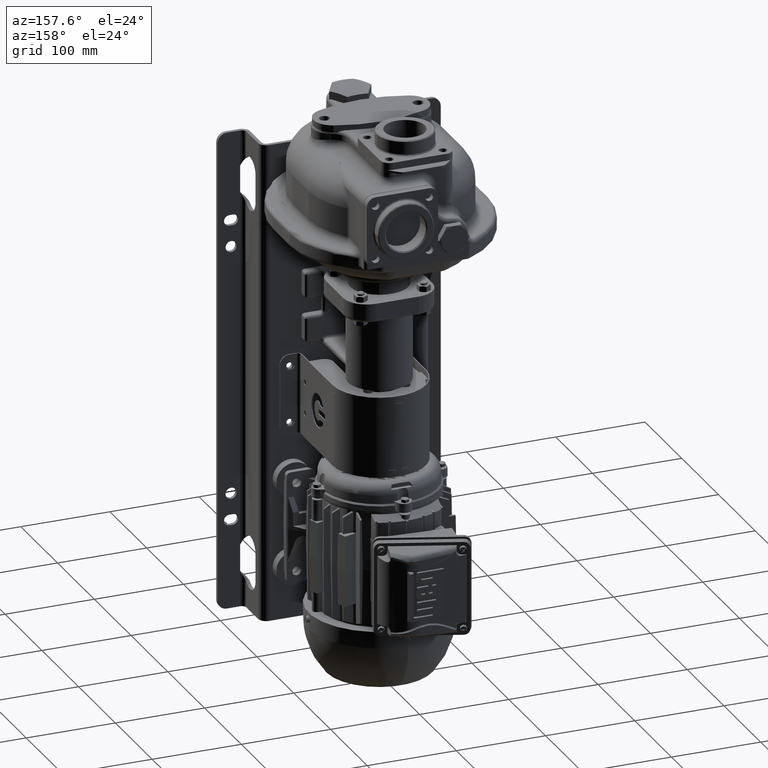
[diagram: clean part render]
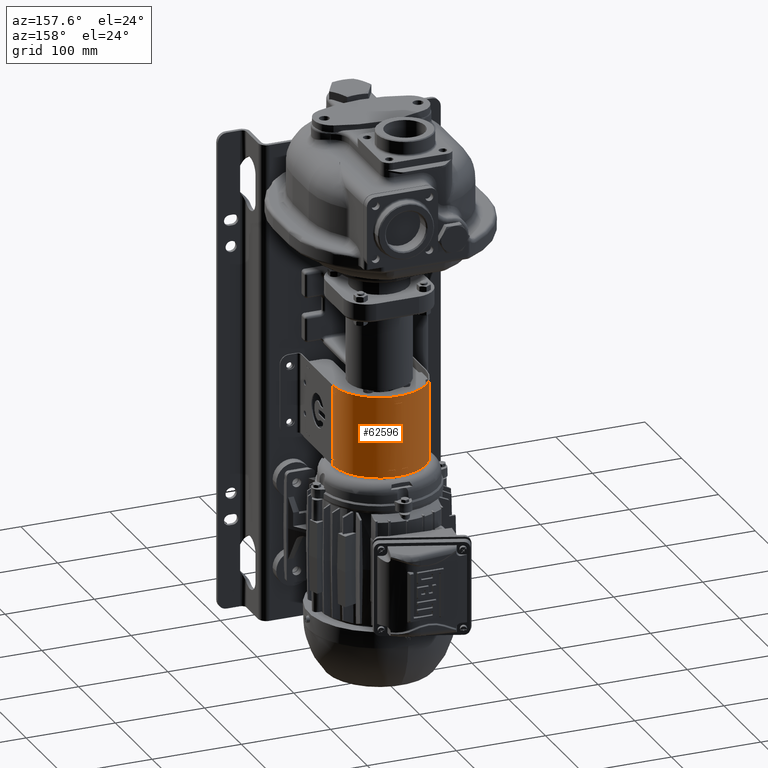
[diagram: same view with one face highlighted and labeled with its STEP entity id]
A machine part, auxiliary view. The second image highlights one B-rep face of the part: STEP entity #62596.
In plain terms, the highlighted cylindrical surface (partial cylindrical patch) has radius 52.5 mm, axis along (0, 0, -1).
Its self-contained STEP definition (entity closure, byte-faithful):
#2335=DIRECTION('',(0.E0,0.E0,-1.E0));
#2336=VECTOR('',#2335,7.E0);
#2337=CARTESIAN_POINT('',(5.25E1,9.E1,-7.9E1));
#2338=LINE('',#2337,#2336);
#2351=DIRECTION('',(0.E0,0.E0,-1.E0));
#2352=VECTOR('',#2351,7.46E1);
#2353=CARTESIAN_POINT('',(5.25E1,9.E1,-8.72E1));
#2354=LINE('',#2353,#2352);
#2367=DIRECTION('',(0.E0,0.E0,-1.E0));
#2368=VECTOR('',#2367,7.E0);
#2369=CARTESIAN_POINT('',(5.25E1,9.E1,-1.63E2));
#2370=LINE('',#2369,#2368);
#2843=CARTESIAN_POINT('',(0.E0,9.E1,-1.62E2));
#2844=DIRECTION('',(0.E0,0.E0,-1.E0));
#2845=DIRECTION('',(-9.999537711208E-1,9.615384615385E-3,0.E0));
#2846=AXIS2_PLACEMENT_3D('',#2843,#2844,#2845);
#2895=CARTESIAN_POINT('',(0.E0,9.E1,-1.62E2));
#2896=DIRECTION('',(0.E0,0.E0,-1.E0));
#2897=DIRECTION('',(-1.962441413671E-1,9.805550657557E-1,0.E0));
#2898=AXIS2_PLACEMENT_3D('',#2895,#2896,#2897);
#2928=CARTESIAN_POINT('',(0.E0,9.E1,-1.62E2));
#2929=DIRECTION('',(0.E0,0.E0,-1.E0));
#2930=DIRECTION('',(8.143187575608E-2,9.966789099860E-1,0.E0));
#2931=AXIS2_PLACEMENT_3D('',#2928,#2929,#2930);
#2980=CARTESIAN_POINT('',(0.E0,9.E1,-1.62E2));
#2981=DIRECTION('',(0.E0,0.E0,-1.E0));
#2982=DIRECTION('',(9.925126204237E-1,1.221421233633E-1,0.E0));
#2983=AXIS2_PLACEMENT_3D('',#2980,#2981,#2982);
#3886=CARTESIAN_POINT('',(-1.010302838907E-14,9.E1,-1.7E2));
#3887=DIRECTION('',(0.E0,0.E0,1.E0));
#3888=DIRECTION('',(1.E0,0.E0,0.E0));
#3889=AXIS2_PLACEMENT_3D('',#3886,#3887,#3888);
#4119=CARTESIAN_POINT('',(0.E0,9.E1,-1.63E2));
#4120=DIRECTION('',(0.E0,0.E0,1.E0));
#4121=DIRECTION('',(-9.897727806310E-1,1.426528749167E-1,0.E0));
#4122=AXIS2_PLACEMENT_3D('',#4119,#4120,#4121);
#4124=DIRECTION('',(2.131628207280E-14,0.E0,1.E0));
#4125=VECTOR('',#4124,1.E0);
#4126=CARTESIAN_POINT('',(-5.210691257224E1,9.641246147657E1,-1.63E2));
#4127=LINE('',#4126,#4125);
#4128=DIRECTION('',(0.E0,-1.421085471520E-14,1.E0));
#4129=VECTOR('',#4128,1.E0);
#4130=CARTESIAN_POINT('',(-5.249757298384E1,9.050480769231E1,-1.63E2));
#4131=LINE('',#4130,#4129);
#4132=CARTESIAN_POINT('',(0.E0,9.E1,-1.63E2));
#4133=DIRECTION('',(0.E0,0.E0,1.E0));
#4134=DIRECTION('',(-9.999537711208E-1,9.615384615385E-3,0.E0));
#4135=AXIS2_PLACEMENT_3D('',#4132,#4133,#4134);
#4137=DIRECTION('',(0.E0,0.E0,-1.E0));
#4138=VECTOR('',#4137,7.E0);
#4139=CARTESIAN_POINT('',(-5.25E1,9.E1,-1.63E2));
#4140=LINE('',#4139,#4138);
#4141=CARTESIAN_POINT('',(0.E0,9.E1,-1.63E2));
#4142=DIRECTION('',(0.E0,0.E0,1.E0));
#4143=DIRECTION('',(1.E0,0.E0,0.E0));
#4144=AXIS2_PLACEMENT_3D('',#4141,#4142,#4143);
#4146=DIRECTION('',(-1.421085471520E-14,0.E0,1.E0));
#4147=VECTOR('',#4146,1.E0);
#4148=CARTESIAN_POINT('',(5.249757298384E1,9.050480769231E1,-1.63E2));
#4149=LINE('',#4148,#4147);
#4150=DIRECTION('',(-1.421085471520E-14,0.E0,1.E0));
#4151=VECTOR('',#4150,1.E0);
#4152=CARTESIAN_POINT('',(5.210691257224E1,9.641246147657E1,-1.63E2));
#4153=LINE('',#4152,#4151);
#4154=CARTESIAN_POINT('',(0.E0,9.E1,-1.63E2));
#4155=DIRECTION('',(0.E0,0.E0,1.E0));
#4156=DIRECTION('',(9.925126204237E-1,1.221421233633E-1,0.E0));
#4157=AXIS2_PLACEMENT_3D('',#4154,#4155,#4156);
#4159=DIRECTION('',(0.E0,0.E0,1.E0));
#4160=VECTOR('',#4159,1.2E0);
#4161=CARTESIAN_POINT('',(5.196307098313E1,9.748927593313E1,-1.63E2));
#4162=LINE('',#4161,#4160);
#4163=CARTESIAN_POINT('',(0.E0,9.E1,-1.618E2));
#4164=DIRECTION('',(0.E0,0.E0,1.E0));
#4165=DIRECTION('',(1.E0,0.E0,0.E0));
#4166=AXIS2_PLACEMENT_3D('',#4163,#4164,#4165);
#4168=CARTESIAN_POINT('',(0.E0,9.E1,-8.72E1));
#4169=DIRECTION('',(0.E0,0.E0,1.E0));
#4170=DIRECTION('',(1.E0,0.E0,0.E0));
#4171=AXIS2_PLACEMENT_3D('',#4168,#4169,#4170);
#4173=DIRECTION('',(0.E0,0.E0,1.E0));
#4174=VECTOR('',#4173,1.2E0);
#4175=CARTESIAN_POINT('',(5.196307098313E1,9.748927593313E1,-8.72E1));
#4176=LINE('',#4175,#4174);
#4177=CARTESIAN_POINT('',(0.E0,9.E1,-8.6E1));
#4178=DIRECTION('',(0.E0,0.E0,1.E0));
#4179=DIRECTION('',(9.925126204237E-1,1.221421233633E-1,0.E0));
#4180=AXIS2_PLACEMENT_3D('',#4177,#4178,#4179);
#4182=DIRECTION('',(-4.973799150321E-14,-2.842170943040E-14,-1.E0));
#4183=VECTOR('',#4182,1.E0);
#4184=CARTESIAN_POINT('',(5.210691257224E1,9.641246147657E1,-8.6E1));
#4185=LINE('',#4184,#4183);
#4186=DIRECTION('',(0.E0,0.E0,-1.E0));
#4187=VECTOR('',#4186,1.E0);
#4188=CARTESIAN_POINT('',(5.249757298384E1,9.050480769231E1,-8.6E1));
#4189=LINE('',#4188,#4187);
#4190=CARTESIAN_POINT('',(0.E0,9.E1,-8.6E1));
#4191=DIRECTION('',(0.E0,0.E0,1.E0));
#4192=DIRECTION('',(1.E0,0.E0,0.E0));
#4193=AXIS2_PLACEMENT_3D('',#4190,#4191,#4192);
#4195=DIRECTION('',(0.E0,0.E0,-1.E0));
#4196=VECTOR('',#4195,7.E0);
#4197=CARTESIAN_POINT('',(-5.25E1,9.E1,-7.9E1));
#4198=LINE('',#4197,#4196);
#4199=CARTESIAN_POINT('',(0.E0,9.E1,-8.6E1));
#4200=DIRECTION('',(0.E0,0.E0,1.E0));
#4201=DIRECTION('',(-9.999537711208E-1,9.615384615385E-3,0.E0));
#4202=AXIS2_PLACEMENT_3D('',#4199,#4200,#4201);
#4204=DIRECTION('',(0.E0,0.E0,-1.E0));
#4205=VECTOR('',#4204,1.E0);
#4206=CARTESIAN_POINT('',(-5.249757298384E1,9.050480769231E1,-8.6E1));
#4207=LINE('',#4206,#4205);
#4208=DIRECTION('',(1.421085471520E-14,0.E0,-1.E0));
#4209=VECTOR('',#4208,1.E0);
#4210=CARTESIAN_POINT('',(-5.210691257224E1,9.641246147657E1,-8.6E1));
#4211=LINE('',#4210,#4209);
#4212=CARTESIAN_POINT('',(0.E0,9.E1,-8.6E1));
#4213=DIRECTION('',(0.E0,0.E0,1.E0));
#4214=DIRECTION('',(-9.897727806310E-1,1.426528749167E-1,0.E0));
#4215=AXIS2_PLACEMENT_3D('',#4212,#4213,#4214);
#4217=DIRECTION('',(0.E0,-2.368475785867E-14,1.E0));
#4218=VECTOR('',#4217,1.2E0);
#4219=CARTESIAN_POINT('',(-5.196307098313E1,9.748927593313E1,-8.72E1));
#4220=LINE('',#4219,#4218);
#4221=CARTESIAN_POINT('',(0.E0,9.E1,-8.72E1));
#4222=DIRECTION('',(0.E0,0.E0,1.E0));
#4223=DIRECTION('',(-9.897727806310E-1,1.426528749167E-1,0.E0));
#4224=AXIS2_PLACEMENT_3D('',#4221,#4222,#4223);
#4226=DIRECTION('',(0.E0,0.E0,-1.E0));
#4227=VECTOR('',#4226,7.46E1);
#4228=CARTESIAN_POINT('',(-5.25E1,9.E1,-8.72E1));
#4229=LINE('',#4228,#4227);
#4230=CARTESIAN_POINT('',(0.E0,9.E1,-1.618E2));
#4231=DIRECTION('',(0.E0,0.E0,1.E0));
#4232=DIRECTION('',(-9.897727806310E-1,1.426528749167E-1,0.E0));
#4233=AXIS2_PLACEMENT_3D('',#4230,#4231,#4232);
#4235=DIRECTION('',(0.E0,0.E0,1.E0));
#4236=VECTOR('',#4235,1.2E0);
#4237=CARTESIAN_POINT('',(-5.196307098313E1,9.748927593313E1,-1.63E2));
#4238=LINE('',#4237,#4236);
#4239=DIRECTION('',(0.E0,5.684341886081E-14,-1.E0));
#4240=VECTOR('',#4239,1.E0);
#4241=CARTESIAN_POINT('',(3.303304705004E0,1.423959748266E2,-8.6E1));
#4242=LINE('',#4241,#4240);
#4243=CARTESIAN_POINT('',(0.E0,9.E1,-8.6E1));
#4244=DIRECTION('',(0.E0,0.E0,1.E0));
#4245=DIRECTION('',(7.571757797562E-2,9.971293037443E-1,0.E0));
#4246=AXIS2_PLACEMENT_3D('',#4243,#4244,#4245);
#4248=DIRECTION('',(0.E0,2.368475785867E-14,-1.E0));
#4249=VECTOR('',#4248,1.2E0);
#4250=CARTESIAN_POINT('',(3.975172843720E0,1.423492884466E2,-8.6E1));
#4251=LINE('',#4250,#4249);
#4252=CARTESIAN_POINT('',(0.E0,9.E1,-8.72E1));
#4253=DIRECTION('',(0.E0,0.E0,1.E0));
#4254=DIRECTION('',(7.571757797562E-2,9.971293037443E-1,0.E0));
#4255=AXIS2_PLACEMENT_3D('',#4252,#4253,#4254);
#4257=DIRECTION('',(0.E0,0.E0,-1.E0));
#4258=VECTOR('',#4257,1.2E0);
#4259=CARTESIAN_POINT('',(-3.971300457389E0,1.423495823544E2,-8.6E1));
#4260=LINE('',#4259,#4258);
#4261=CARTESIAN_POINT('',(0.E0,9.E1,-8.6E1));
#4262=DIRECTION('',(0.E0,0.E0,1.E0));
#4263=DIRECTION('',(-6.292008961927E-2,9.980185681250E-1,0.E0));
#4264=AXIS2_PLACEMENT_3D('',#4261,#4262,#4263);
#4266=DIRECTION('',(1.607602939657E-13,0.E0,-1.E0));
#4267=VECTOR('',#4266,1.E0);
#4268=CARTESIAN_POINT('',(-3.303304705012E0,1.423959748266E2,-8.6E1));
#4269=LINE('',#4268,#4267);
#4270=CARTESIAN_POINT('',(0.E0,9.E1,-1.63E2));
#4271=DIRECTION('',(0.E0,0.E0,1.E0));
#4272=DIRECTION('',(-6.990779497941E-2,9.975534573150E-1,0.E0));
#4273=AXIS2_PLACEMENT_3D('',#4270,#4271,#4272);
#4275=DIRECTION('',(0.E0,0.E0,1.E0));
#4276=VECTOR('',#4275,1.E0);
#4277=CARTESIAN_POINT('',(-4.275173477194E0,1.423256427743E2,-1.63E2));
#4278=LINE('',#4277,#4276);
#4279=DIRECTION('',(0.E0,0.E0,1.E0));
#4280=VECTOR('',#4279,1.E0);
#4281=CARTESIAN_POINT('',(-1.030281742177E1,1.414791409522E2,-1.63E2));
#4282=LINE('',#4281,#4280);
#4283=CARTESIAN_POINT('',(0.E0,9.E1,-1.63E2));
#4284=DIRECTION('',(0.E0,0.E0,1.E0));
#4285=DIRECTION('',(-1.962441413671E-1,9.805550657557E-1,0.E0));
#4286=AXIS2_PLACEMENT_3D('',#4283,#4284,#4285);
#4288=DIRECTION('',(0.E0,0.E0,1.E0));
#4289=VECTOR('',#4288,1.2E0);
#4290=CARTESIAN_POINT('',(-1.100391417294E1,1.413338472440E2,-1.63E2));
#4291=LINE('',#4290,#4289);
#4292=CARTESIAN_POINT('',(0.E0,9.E1,-1.618E2));
#4293=DIRECTION('',(0.E0,0.E0,1.E0));
#4294=DIRECTION('',(-6.990779497941E-2,9.975534573150E-1,0.E0));
#4295=AXIS2_PLACEMENT_3D('',#4292,#4293,#4294);
#4297=DIRECTION('',(0.E0,0.E0,1.E0));
#4298=VECTOR('',#4297,1.2E0);
#4299=CARTESIAN_POINT('',(-3.670159236419E0,1.423715565090E2,-1.63E2));
#4300=LINE('',#4299,#4298);
#4301=CARTESIAN_POINT('',(0.E0,9.E1,-1.63E2));
#4302=DIRECTION('',(0.E0,0.E0,1.E0));
#4303=DIRECTION('',(2.095983651989E-1,9.777875665532E-1,0.E0));
#4304=AXIS2_PLACEMENT_3D('',#4301,#4302,#4303);
#4306=DIRECTION('',(0.E0,0.E0,1.E0));
#4307=VECTOR('',#4306,1.E0);
#4308=CARTESIAN_POINT('',(1.030281742177E1,1.414791409522E2,-1.63E2));
#4309=LINE('',#4308,#4307);
#4310=DIRECTION('',(0.E0,0.E0,1.E0));
#4311=VECTOR('',#4310,1.E0);
#4312=CARTESIAN_POINT('',(4.275173477194E0,1.423256427743E2,-1.63E2));
#4313=LINE('',#4312,#4311);
#4314=CARTESIAN_POINT('',(0.E0,9.E1,-1.63E2));
#4315=DIRECTION('',(0.E0,0.E0,1.E0));
#4316=DIRECTION('',(8.143187575608E-2,9.966789099860E-1,0.E0));
#4317=AXIS2_PLACEMENT_3D('',#4314,#4315,#4316);
#4319=DIRECTION('',(0.E0,0.E0,1.E0));
#4320=VECTOR('',#4319,1.2E0);
#4321=CARTESIAN_POINT('',(3.670159236419E0,1.423715565090E2,-1.63E2));
#4322=LINE('',#4321,#4320);
#4323=CARTESIAN_POINT('',(0.E0,9.E1,-1.618E2));
#4324=DIRECTION('',(0.E0,0.E0,1.E0));
#4325=DIRECTION('',(2.095983651989E-1,9.777875665532E-1,0.E0));
#4326=AXIS2_PLACEMENT_3D('',#4323,#4324,#4325);
#4328=DIRECTION('',(0.E0,0.E0,1.E0));
#4329=VECTOR('',#4328,1.2E0);
#4330=CARTESIAN_POINT('',(1.100391417294E1,1.413338472440E2,-1.63E2));
#4331=LINE('',#4330,#4329);
#4604=CARTESIAN_POINT('',(0.E0,9.E1,-8.7E1));
#4605=DIRECTION('',(0.E0,0.E0,1.E0));
#4606=DIRECTION('',(9.999537711208E-1,9.615384615385E-3,0.E0));
#4607=AXIS2_PLACEMENT_3D('',#4604,#4605,#4606);
#4676=CARTESIAN_POINT('',(0.E0,9.E1,-8.7E1));
#4677=DIRECTION('',(0.E0,0.E0,-1.E0));
#4678=DIRECTION('',(-6.292008961926E-2,9.980185681250E-1,0.E0));
#4679=AXIS2_PLACEMENT_3D('',#4676,#4677,#4678);
#4748=CARTESIAN_POINT('',(0.E0,9.E1,-8.7E1));
#4749=DIRECTION('',(0.E0,0.E0,1.E0));
#4750=DIRECTION('',(-9.925126204237E-1,1.221421233633E-1,0.E0));
#4751=AXIS2_PLACEMENT_3D('',#4748,#4749,#4750);
#5529=CARTESIAN_POINT('',(1.010303065911E-14,9.E1,-7.9E1));
#5530=DIRECTION('',(0.E0,0.E0,1.E0));
#5531=DIRECTION('',(1.E0,0.E0,0.E0));
#5532=AXIS2_PLACEMENT_3D('',#5529,#5530,#5531);
#56303=CARTESIAN_POINT('',(-3.303304705011E0,1.423959748266E2,-8.7E1));
#56304=CARTESIAN_POINT('',(3.303304705004E0,1.423959748266E2,-8.7E1));
#56305=VERTEX_POINT('',#56303);
#56306=VERTEX_POINT('',#56304);
#56431=CARTESIAN_POINT('',(5.249757298384E1,9.050480769231E1,-8.7E1));
#56433=VERTEX_POINT('',#56431);
#56436=CARTESIAN_POINT('',(5.210691257224E1,9.641246147657E1,-8.7E1));
#56438=VERTEX_POINT('',#56436);
#56439=CARTESIAN_POINT('',(-5.210691257224E1,9.641246147657E1,-8.7E1));
#56441=VERTEX_POINT('',#56439);
#56444=CARTESIAN_POINT('',(-5.249757298384E1,9.050480769231E1,-8.7E1));
#56446=VERTEX_POINT('',#56444);
#56463=CARTESIAN_POINT('',(-5.25E1,9.E1,-7.9E1));
#56465=VERTEX_POINT('',#56463);
#56468=CARTESIAN_POINT('',(5.25E1,9.E1,-7.9E1));
#56470=VERTEX_POINT('',#56468);
#56495=CARTESIAN_POINT('',(-5.25E1,9.E1,-1.618E2));
#56497=VERTEX_POINT('',#56495);
#56499=CARTESIAN_POINT('',(-5.25E1,9.E1,-1.63E2));
#56501=VERTEX_POINT('',#56499);
#56503=CARTESIAN_POINT('',(5.25E1,9.E1,-1.618E2));
#56505=VERTEX_POINT('',#56503);
#56507=CARTESIAN_POINT('',(5.25E1,9.E1,-1.63E2));
#56509=VERTEX_POINT('',#56507);
#56523=CARTESIAN_POINT('',(1.100391417294E1,1.413338472440E2,-1.618E2));
#56524=VERTEX_POINT('',#56523);
#56525=CARTESIAN_POINT('',(3.670159236419E0,1.423715565090E2,-1.618E2));
#56526=VERTEX_POINT('',#56525);
#56527=CARTESIAN_POINT('',(5.196307098313E1,9.748927593313E1,-1.618E2));
#56528=VERTEX_POINT('',#56527);
#56529=CARTESIAN_POINT('',(-5.196307098313E1,9.748927593313E1,-1.618E2));
#56530=VERTEX_POINT('',#56529);
#56531=CARTESIAN_POINT('',(5.25E1,9.E1,-1.7E2));
#56532=VERTEX_POINT('',#56531);
#56533=CARTESIAN_POINT('',(-5.25E1,9.E1,-1.7E2));
#56534=VERTEX_POINT('',#56533);
#56565=CARTESIAN_POINT('',(-3.670159236419E0,1.423715565090E2,-1.618E2));
#56566=CARTESIAN_POINT('',(-1.100391417294E1,1.413338472440E2,-1.618E2));
#56567=VERTEX_POINT('',#56565);
#56568=VERTEX_POINT('',#56566);
#56569=CARTESIAN_POINT('',(-3.670159236419E0,1.423715565090E2,-1.63E2));
#56570=VERTEX_POINT('',#56569);
#56571=CARTESIAN_POINT('',(-1.100391417294E1,1.413338472440E2,-1.63E2));
#56572=VERTEX_POINT('',#56571);
#56579=CARTESIAN_POINT('',(1.100391417294E1,1.413338472440E2,-1.63E2));
#56580=VERTEX_POINT('',#56579);
#56581=CARTESIAN_POINT('',(3.670159236419E0,1.423715565090E2,-1.63E2));
#56582=VERTEX_POINT('',#56581);
#56619=CARTESIAN_POINT('',(5.25E1,9.E1,-8.72E1));
#56620=CARTESIAN_POINT('',(5.196307098313E1,9.748927593313E1,-8.72E1));
#56621=VERTEX_POINT('',#56619);
#56622=VERTEX_POINT('',#56620);
#56623=CARTESIAN_POINT('',(5.25E1,9.E1,-8.6E1));
#56624=VERTEX_POINT('',#56623);
#56625=CARTESIAN_POINT('',(-5.25E1,9.E1,-8.6E1));
#56626=VERTEX_POINT('',#56625);
#56627=CARTESIAN_POINT('',(-5.25E1,9.E1,-8.72E1));
#56628=VERTEX_POINT('',#56627);
#56629=CARTESIAN_POINT('',(-5.196307098313E1,9.748927593313E1,-8.72E1));
#56630=VERTEX_POINT('',#56629);
#56631=CARTESIAN_POINT('',(-3.971300457389E0,1.423495823544E2,-8.6E1));
#56632=CARTESIAN_POINT('',(-3.971300457389E0,1.423495823544E2,-8.72E1));
#56633=VERTEX_POINT('',#56631);
#56634=VERTEX_POINT('',#56632);
#56635=CARTESIAN_POINT('',(3.975172843720E0,1.423492884466E2,-8.72E1));
#56636=VERTEX_POINT('',#56635);
#56637=CARTESIAN_POINT('',(3.975172843720E0,1.423492884466E2,-8.6E1));
#56638=VERTEX_POINT('',#56637);
#56863=CARTESIAN_POINT('',(5.196307098313E1,9.748927593313E1,-1.63E2));
#56864=VERTEX_POINT('',#56863);
#56865=CARTESIAN_POINT('',(-5.196307098313E1,9.748927593313E1,-1.63E2));
#56866=VERTEX_POINT('',#56865);
#56867=CARTESIAN_POINT('',(5.196307098313E1,9.748927593313E1,-8.6E1));
#56868=VERTEX_POINT('',#56867);
#56869=CARTESIAN_POINT('',(-5.196307098313E1,9.748927593313E1,-8.6E1));
#56870=VERTEX_POINT('',#56869);
#56991=CARTESIAN_POINT('',(3.303304705004E0,1.423959748266E2,-8.6E1));
#56992=VERTEX_POINT('',#56991);
#56993=CARTESIAN_POINT('',(-3.303304705012E0,1.423959748266E2,-8.6E1));
#56994=VERTEX_POINT('',#56993);
#57003=CARTESIAN_POINT('',(-5.249757298384E1,9.050480769231E1,-8.6E1));
#57004=VERTEX_POINT('',#57003);
#57005=CARTESIAN_POINT('',(-5.210691257224E1,9.641246147657E1,-8.6E1));
#57006=VERTEX_POINT('',#57005);
#57007=CARTESIAN_POINT('',(5.210691257224E1,9.641246147657E1,-8.6E1));
#57008=VERTEX_POINT('',#57007);
#57009=CARTESIAN_POINT('',(5.249757298384E1,9.050480769231E1,-8.6E1));
#57010=VERTEX_POINT('',#57009);
#57035=CARTESIAN_POINT('',(4.275173477194E0,1.423256427743E2,-1.62E2));
#57037=VERTEX_POINT('',#57035);
#57040=CARTESIAN_POINT('',(-4.275173477194E0,1.423256427743E2,-1.62E2));
#57042=VERTEX_POINT('',#57040);
#57055=CARTESIAN_POINT('',(-1.030281742177E1,1.414791409522E2,-1.62E2));
#57056=VERTEX_POINT('',#57055);
#57061=CARTESIAN_POINT('',(1.030281742177E1,1.414791409522E2,-1.62E2));
#57062=VERTEX_POINT('',#57061);
#57155=CARTESIAN_POINT('',(-5.249757298384E1,9.050480769231E1,-1.62E2));
#57157=VERTEX_POINT('',#57155);
#57160=CARTESIAN_POINT('',(-5.210691257224E1,9.641246147657E1,-1.62E2));
#57162=VERTEX_POINT('',#57160);
#57164=CARTESIAN_POINT('',(5.249757298384E1,9.050480769231E1,-1.62E2));
#57166=VERTEX_POINT('',#57164);
#57167=CARTESIAN_POINT('',(5.210691257224E1,9.641246147657E1,-1.62E2));
#57169=VERTEX_POINT('',#57167);
#57297=CARTESIAN_POINT('',(4.275173477194E0,1.423256427743E2,-1.63E2));
#57298=VERTEX_POINT('',#57297);
#57301=CARTESIAN_POINT('',(1.030281742177E1,1.414791409522E2,-1.63E2));
#57302=VERTEX_POINT('',#57301);
#57305=CARTESIAN_POINT('',(5.210691257224E1,9.641246147657E1,-1.63E2));
#57306=VERTEX_POINT('',#57305);
#57307=CARTESIAN_POINT('',(5.249757298384E1,9.050480769231E1,-1.63E2));
#57308=VERTEX_POINT('',#57307);
#57311=CARTESIAN_POINT('',(-5.210691257224E1,9.641246147657E1,-1.63E2));
#57312=VERTEX_POINT('',#57311);
#57313=CARTESIAN_POINT('',(-5.249757298384E1,9.050480769231E1,-1.63E2));
#57314=VERTEX_POINT('',#57313);
#57317=CARTESIAN_POINT('',(-4.275173477194E0,1.423256427743E2,-1.63E2));
#57318=VERTEX_POINT('',#57317);
#57321=CARTESIAN_POINT('',(-1.030281742177E1,1.414791409522E2,-1.63E2));
#57322=VERTEX_POINT('',#57321);
#62476=CARTESIAN_POINT('',(0.E0,9.E1,-8.65E1));
#62477=DIRECTION('',(0.E0,0.E0,-1.E0));
#62478=DIRECTION('',(-7.184466019433E-2,9.974158334424E-1,0.E0));
#62479=AXIS2_PLACEMENT_3D('',#62476,#62477,#62478);
#62480=CYLINDRICAL_SURFACE('',#62479,5.25E1);
#62482=ORIENTED_EDGE('',*,*,#62481,.T.);
#62484=ORIENTED_EDGE('',*,*,#62483,.T.);
#62485=ORIENTED_EDGE('',*,*,#61525,.F.);
#62487=ORIENTED_EDGE('',*,*,#62486,.F.);
#62489=ORIENTED_EDGE('',*,*,#62488,.T.);
#62490=ORIENTED_EDGE('',*,*,#62076,.T.);
#62491=ORIENTED_EDGE('',*,*,#62243,.F.);
#62492=ORIENTED_EDGE('',*,*,#61245,.F.);
#62494=ORIENTED_EDGE('',*,*,#62493,.T.);
#62496=ORIENTED_EDGE('',*,*,#62495,.T.);
#62497=ORIENTED_EDGE('',*,*,#61589,.F.);
#62499=ORIENTED_EDGE('',*,*,#62498,.F.);
#62501=ORIENTED_EDGE('',*,*,#62500,.T.);
#62503=ORIENTED_EDGE('',*,*,#62502,.T.);
#62505=ORIENTED_EDGE('',*,*,#62504,.F.);
#62506=ORIENTED_EDGE('',*,*,#61237,.F.);
#62508=ORIENTED_EDGE('',*,*,#62507,.T.);
#62510=ORIENTED_EDGE('',*,*,#62509,.T.);
#62512=ORIENTED_EDGE('',*,*,#62511,.F.);
#62514=ORIENTED_EDGE('',*,*,#62513,.T.);
#62516=ORIENTED_EDGE('',*,*,#62515,.F.);
#62518=ORIENTED_EDGE('',*,*,#62517,.F.);
#62520=ORIENTED_EDGE('',*,*,#62519,.F.);
#62521=ORIENTED_EDGE('',*,*,#61229,.F.);
#62523=ORIENTED_EDGE('',*,*,#62522,.T.);
#62524=ORIENTED_EDGE('',*,*,#62092,.T.);
#62526=ORIENTED_EDGE('',*,*,#62525,.F.);
#62528=ORIENTED_EDGE('',*,*,#62527,.T.);
#62530=ORIENTED_EDGE('',*,*,#62529,.F.);
#62532=ORIENTED_EDGE('',*,*,#62531,.F.);
#62534=ORIENTED_EDGE('',*,*,#62533,.F.);
#62536=ORIENTED_EDGE('',*,*,#62535,.F.);
#62538=ORIENTED_EDGE('',*,*,#62537,.T.);
#62539=ORIENTED_EDGE('',*,*,#62084,.T.);
#62541=ORIENTED_EDGE('',*,*,#62540,.F.);
#62543=ORIENTED_EDGE('',*,*,#62542,.F.);
#62544=EDGE_LOOP('',(#62482,#62484,#62485,#62487,#62489,#62490,#62491,#62492,
#62494,#62496,#62497,#62499,#62501,#62503,#62505,#62506,#62508,#62510,#62512,
#62514,#62516,#62518,#62520,#62521,#62523,#62524,#62526,#62528,#62530,#62532,
#62534,#62536,#62538,#62539,#62541,#62543));
#62545=FACE_OUTER_BOUND('',#62544,.F.);
#62547=ORIENTED_EDGE('',*,*,#62546,.F.);
#62549=ORIENTED_EDGE('',*,*,#62548,.F.);
#62551=ORIENTED_EDGE('',*,*,#62550,.T.);
#62553=ORIENTED_EDGE('',*,*,#62552,.T.);
#62555=ORIENTED_EDGE('',*,*,#62554,.F.);
#62557=ORIENTED_EDGE('',*,*,#62556,.F.);
#62559=ORIENTED_EDGE('',*,*,#62558,.T.);
#62561=ORIENTED_EDGE('',*,*,#62560,.T.);
#62562=EDGE_LOOP('',(#62547,#62549,#62551,#62553,#62555,#62557,#62559,#62561));
#62563=FACE_BOUND('',#62562,.F.);
#62565=ORIENTED_EDGE('',*,*,#62564,.T.);
#62567=ORIENTED_EDGE('',*,*,#62566,.T.);
#62568=ORIENTED_EDGE('',*,*,#61549,.F.);
#62570=ORIENTED_EDGE('',*,*,#62569,.F.);
#62572=ORIENTED_EDGE('',*,*,#62571,.T.);
#62574=ORIENTED_EDGE('',*,*,#62573,.T.);
#62576=ORIENTED_EDGE('',*,*,#62575,.F.);
#62578=ORIENTED_EDGE('',*,*,#62577,.F.);
#62579=EDGE_LOOP('',(#62565,#62567,#62568,#62570,#62572,#62574,#62576,#62578));
#62580=FACE_BOUND('',#62579,.F.);
#62581=ORIENTED_EDGE('',*,*,#62455,.T.);
#62582=ORIENTED_EDGE('',*,*,#62471,.T.);
#62583=ORIENTED_EDGE('',*,*,#61565,.F.);
#62585=ORIENTED_EDGE('',*,*,#62584,.F.);
#62587=ORIENTED_EDGE('',*,*,#62586,.T.);
#62589=ORIENTED_EDGE('',*,*,#62588,.T.);
#62591=ORIENTED_EDGE('',*,*,#62590,.F.);
#62593=ORIENTED_EDGE('',*,*,#62592,.F.);
#62594=EDGE_LOOP('',(#62581,#62582,#62583,#62585,#62587,#62589,#62591,#62593));
#62595=FACE_BOUND('',#62594,.F.);
#62596=ADVANCED_FACE('',(#62545,#62563,#62580,#62595),#62480,.T.);
#2847=CIRCLE('',#2846,5.25E1);
#2899=CIRCLE('',#2898,5.25E1);
#2932=CIRCLE('',#2931,5.25E1);
#2984=CIRCLE('',#2983,5.25E1);
#3890=CIRCLE('',#3889,5.25E1);
#4123=CIRCLE('',#4122,5.25E1);
#4136=CIRCLE('',#4135,5.25E1);
#4145=CIRCLE('',#4144,5.25E1);
#4158=CIRCLE('',#4157,5.25E1);
#4167=CIRCLE('',#4166,5.25E1);
#4172=CIRCLE('',#4171,5.25E1);
#4181=CIRCLE('',#4180,5.25E1);
#4194=CIRCLE('',#4193,5.25E1);
#4203=CIRCLE('',#4202,5.25E1);
#4216=CIRCLE('',#4215,5.25E1);
#4225=CIRCLE('',#4224,5.25E1);
#4234=CIRCLE('',#4233,5.25E1);
#4247=CIRCLE('',#4246,5.25E1);
#4256=CIRCLE('',#4255,5.25E1);
#4265=CIRCLE('',#4264,5.25E1);
#4274=CIRCLE('',#4273,5.25E1);
#4287=CIRCLE('',#4286,5.25E1);
#4296=CIRCLE('',#4295,5.25E1);
#4305=CIRCLE('',#4304,5.25E1);
#4318=CIRCLE('',#4317,5.25E1);
#4327=CIRCLE('',#4326,5.25E1);
#4608=CIRCLE('',#4607,5.25E1);
#4680=CIRCLE('',#4679,5.25E1);
#4752=CIRCLE('',#4751,5.25E1);
#5533=CIRCLE('',#5532,5.25E1);
#61229=EDGE_CURVE('',#56470,#56624,#2338,.T.);
#61237=EDGE_CURVE('',#56621,#56505,#2354,.T.);
#61245=EDGE_CURVE('',#56509,#56532,#2370,.T.);
#61525=EDGE_CURVE('',#57157,#57162,#2847,.T.);
#61549=EDGE_CURVE('',#57056,#57042,#2899,.T.);
#61565=EDGE_CURVE('',#57037,#57062,#2932,.T.);
#61589=EDGE_CURVE('',#57169,#57166,#2984,.T.);
#62076=EDGE_CURVE('',#56501,#56534,#4140,.T.);
#62084=EDGE_CURVE('',#56628,#56497,#4229,.T.);
#62092=EDGE_CURVE('',#56465,#56626,#4198,.T.);
#62243=EDGE_CURVE('',#56532,#56534,#3890,.T.);
#62455=EDGE_CURVE('',#56580,#57302,#4305,.T.);
#62471=EDGE_CURVE('',#57302,#57062,#4309,.T.);
#62481=EDGE_CURVE('',#56866,#57312,#4123,.T.);
#62483=EDGE_CURVE('',#57312,#57162,#4127,.T.);
#62486=EDGE_CURVE('',#57314,#57157,#4131,.T.);
#62488=EDGE_CURVE('',#57314,#56501,#4136,.T.);
#62493=EDGE_CURVE('',#56509,#57308,#4145,.T.);
#62495=EDGE_CURVE('',#57308,#57166,#4149,.T.);
#62498=EDGE_CURVE('',#57306,#57169,#4153,.T.);
#62500=EDGE_CURVE('',#57306,#56864,#4158,.T.);
#62502=EDGE_CURVE('',#56864,#56528,#4162,.T.);
#62504=EDGE_CURVE('',#56505,#56528,#4167,.T.);
#62507=EDGE_CURVE('',#56621,#56622,#4172,.T.);
#62509=EDGE_CURVE('',#56622,#56868,#4176,.T.);
#62511=EDGE_CURVE('',#57008,#56868,#4181,.T.);
#62513=EDGE_CURVE('',#57008,#56438,#4185,.T.);
#62515=EDGE_CURVE('',#56433,#56438,#4608,.T.);
#62517=EDGE_CURVE('',#57010,#56433,#4189,.T.);
#62519=EDGE_CURVE('',#56624,#57010,#4194,.T.);
#62522=EDGE_CURVE('',#56470,#56465,#5533,.T.);
#62525=EDGE_CURVE('',#57004,#56626,#4203,.T.);
#62527=EDGE_CURVE('',#57004,#56446,#4207,.T.);
#62529=EDGE_CURVE('',#56441,#56446,#4752,.T.);
#62531=EDGE_CURVE('',#57006,#56441,#4211,.T.);
#62533=EDGE_CURVE('',#56870,#57006,#4216,.T.);
#62535=EDGE_CURVE('',#56630,#56870,#4220,.T.);
#62537=EDGE_CURVE('',#56630,#56628,#4225,.T.);
#62540=EDGE_CURVE('',#56530,#56497,#4234,.T.);
#62542=EDGE_CURVE('',#56866,#56530,#4238,.T.);
#62546=EDGE_CURVE('',#56992,#56306,#4242,.T.);
#62548=EDGE_CURVE('',#56638,#56992,#4247,.T.);
#62550=EDGE_CURVE('',#56638,#56636,#4251,.T.);
#62552=EDGE_CURVE('',#56636,#56634,#4256,.T.);
#62554=EDGE_CURVE('',#56633,#56634,#4260,.T.);
#62556=EDGE_CURVE('',#56994,#56633,#4265,.T.);
#62558=EDGE_CURVE('',#56994,#56305,#4269,.T.);
#62560=EDGE_CURVE('',#56305,#56306,#4680,.T.);
#62564=EDGE_CURVE('',#56570,#57318,#4274,.T.);
#62566=EDGE_CURVE('',#57318,#57042,#4278,.T.);
#62569=EDGE_CURVE('',#57322,#57056,#4282,.T.);
#62571=EDGE_CURVE('',#57322,#56572,#4287,.T.);
#62573=EDGE_CURVE('',#56572,#56568,#4291,.T.);
#62575=EDGE_CURVE('',#56567,#56568,#4296,.T.);
#62577=EDGE_CURVE('',#56570,#56567,#4300,.T.);
#62584=EDGE_CURVE('',#57298,#57037,#4313,.T.);
#62586=EDGE_CURVE('',#57298,#56582,#4318,.T.);
#62588=EDGE_CURVE('',#56582,#56526,#4322,.T.);
#62590=EDGE_CURVE('',#56524,#56526,#4327,.T.);
#62592=EDGE_CURVE('',#56580,#56524,#4331,.T.);